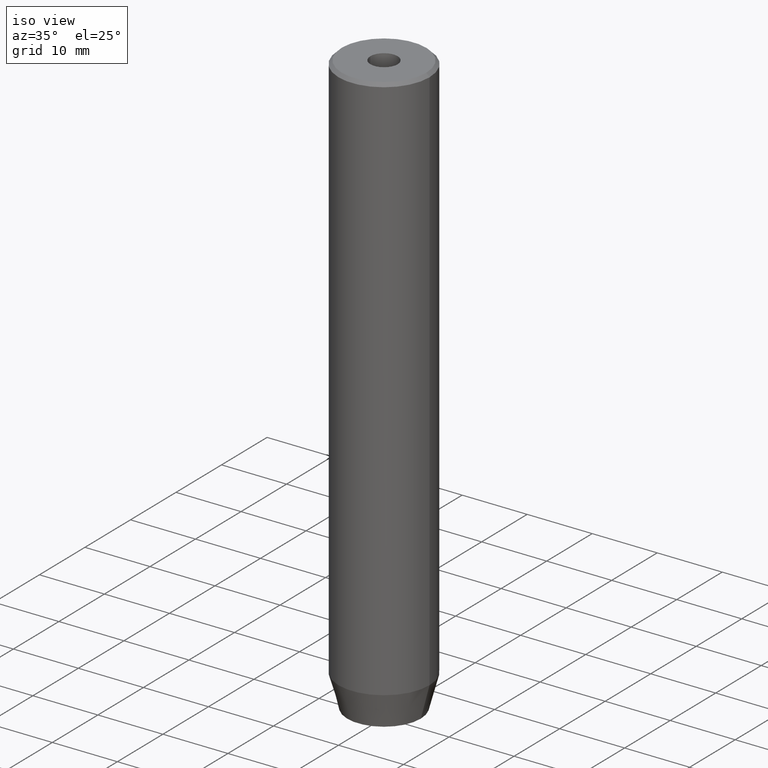
[diagram: clean part render]
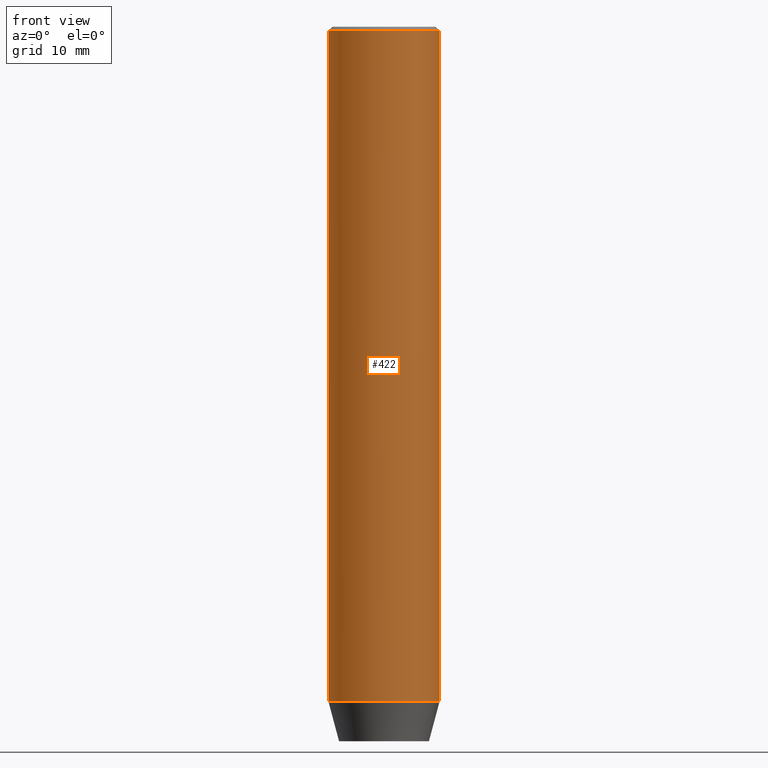
[diagram: tour spotlight — one face highlighted and labeled with its STEP entity id]
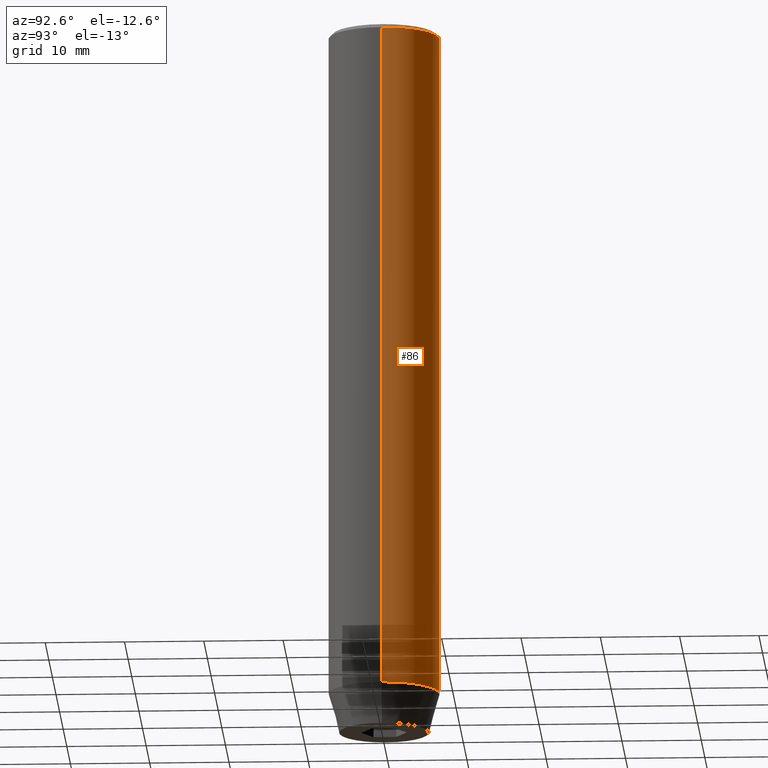
[diagram: tour spotlight — one face highlighted and labeled with its STEP entity id]
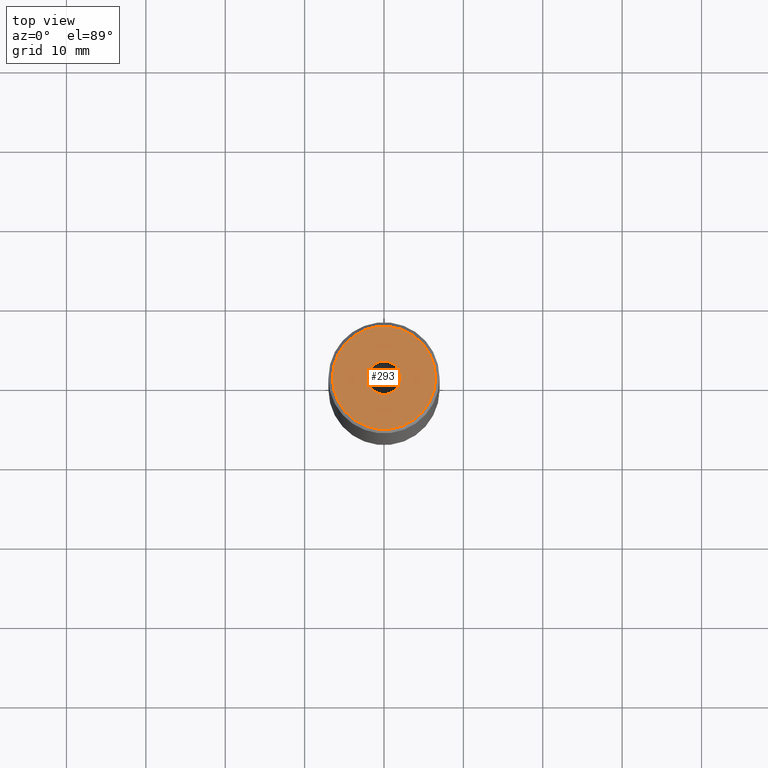
[diagram: tour spotlight — one face highlighted and labeled with its STEP entity id]
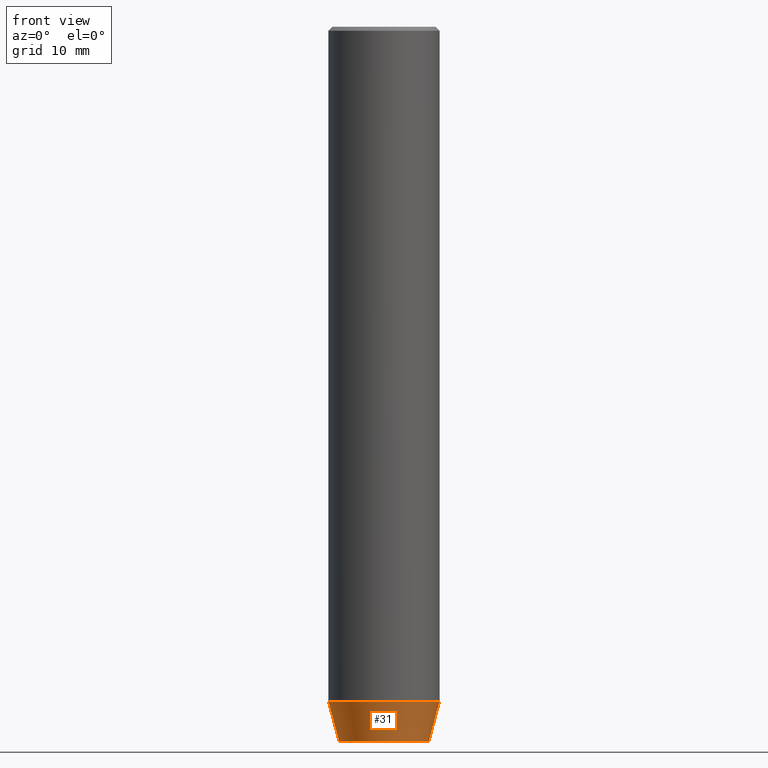
[diagram: tour spotlight — one face highlighted and labeled with its STEP entity id]
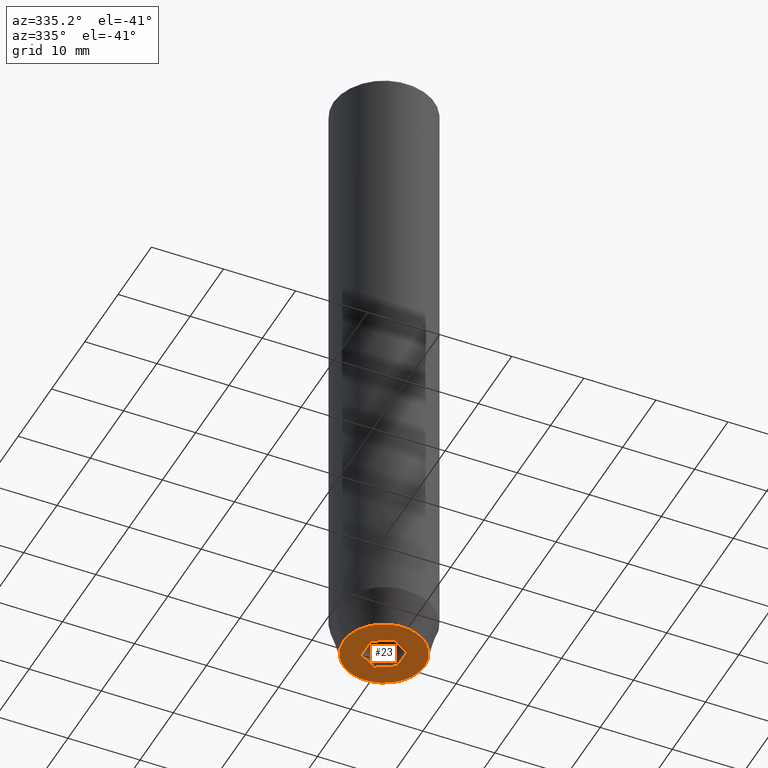
[diagram: tour spotlight — one face highlighted and labeled with its STEP entity id]
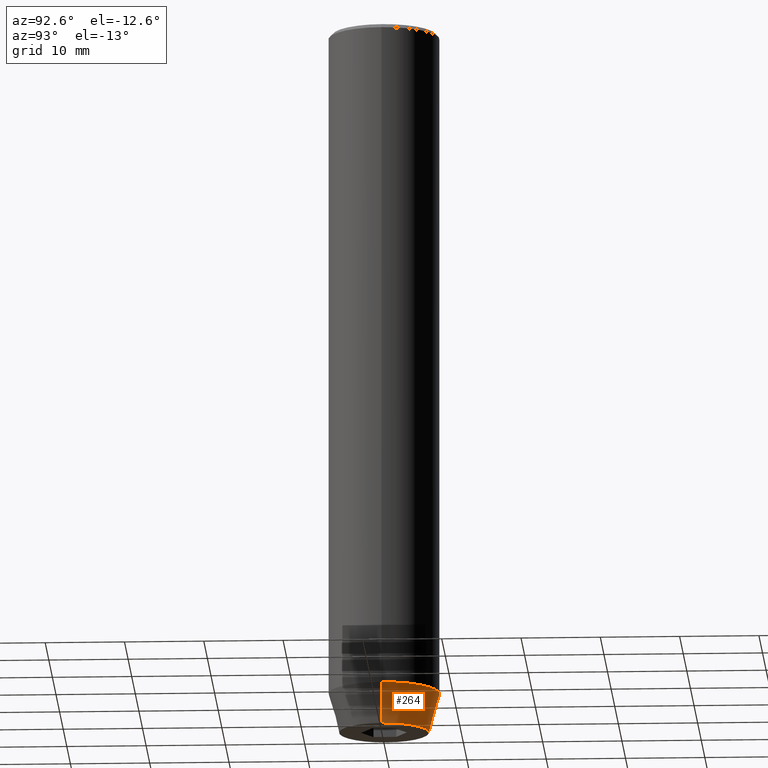
[diagram: tour spotlight — one face highlighted and labeled with its STEP entity id]
A machine part: a face-by-face anatomy tour. The part has 19 B-rep faces; the first image is the clean iso view, then the 6 largest visible faces are spotlighted one at a time (largest first), each with its STEP entity span.

Face 1 — front view, entity #422. In plain terms, the highlighted cylindrical surface (partial cylindrical patch) has radius 7 mm, axis along (-0, -0, 1).
Definition (entity closure, byte-faithful):
#4 = LINE ( 'NONE', #284, #435 ) ;
#8 = DIRECTION ( 'NONE',  ( -0.000000000000000000, -0.000000000000000000, 1.000000000000000000 ) ) ;
#40 = EDGE_CURVE ( 'NONE', #448, #223, #80, .T. ) ;
#58 = DIRECTION ( 'NONE',  ( -0.000000000000000000, -0.000000000000000000, 1.000000000000000000 ) ) ;
#62 = EDGE_CURVE ( 'NONE', #262, #153, #401, .T. ) ;
#80 = CIRCLE ( 'NONE', #251, 7.000000000000000000 ) ;
#97 = CARTESIAN_POINT ( 'NONE',  ( 0.000000000000000000, 0.000000000000000000, -84.99999999999998579 ) ) ;
#101 = CARTESIAN_POINT ( 'NONE',  ( 0.000000000000000000, 0.000000000000000000, -0.5000000000000186517 ) ) ;
#108 = ORIENTED_EDGE ( 'NONE', *, *, #337, .F. ) ;
#116 = CARTESIAN_POINT ( 'NONE',  ( 7.000000000000000000, 0.000000000000000000, -84.99999999999998579 ) ) ;
#145 = ORIENTED_EDGE ( 'NONE', *, *, #62, .T. ) ;
#147 = DIRECTION ( 'NONE',  ( -0.000000000000000000, -0.000000000000000000, 1.000000000000000000 ) ) ;
#153 = VERTEX_POINT ( 'NONE', #116 ) ;
#171 = CYLINDRICAL_SURFACE ( 'NONE', #463, 7.000000000000000000 ) ;
#189 = CARTESIAN_POINT ( 'NONE',  ( 0.000000000000000000, 0.000000000000000000, 0.000000000000000000 ) ) ;
#212 = AXIS2_PLACEMENT_3D ( 'NONE', #97, #8, #414 ) ;
#216 = ORIENTED_EDGE ( 'NONE', *, *, #246, .T. ) ;
#223 = VERTEX_POINT ( 'NONE', #240 ) ;
#239 = LINE ( 'NONE', #550, #271 ) ;
#240 = CARTESIAN_POINT ( 'NONE',  ( -7.000000000000000000, 8.572527594031473190E-16, -0.5000000000000186517 ) ) ;
#246 = EDGE_CURVE ( 'NONE', #153, #448, #4, .T. ) ;
#251 = AXIS2_PLACEMENT_3D ( 'NONE', #101, #286, #425 ) ;
#262 = VERTEX_POINT ( 'NONE', #503 ) ;
#271 = VECTOR ( 'NONE', #58, 1000.000000000000000 ) ;
#284 = CARTESIAN_POINT ( 'NONE',  ( 7.000000000000000000, 0.000000000000000000, 0.000000000000000000 ) ) ;
#286 = DIRECTION ( 'NONE',  ( 0.000000000000000000, 0.000000000000000000, -1.000000000000000000 ) ) ;
#321 = ORIENTED_EDGE ( 'NONE', *, *, #40, .T. ) ;
#337 = EDGE_CURVE ( 'NONE', #262, #223, #239, .T. ) ;
#401 = CIRCLE ( 'NONE', #212, 7.000000000000000000 ) ;
#414 = DIRECTION ( 'NONE',  ( 1.000000000000000000, 0.000000000000000000, 0.000000000000000000 ) ) ;
#422 = ADVANCED_FACE ( 'NONE', ( #457 ), #171, .T. ) ;
#425 = DIRECTION ( 'NONE',  ( 1.000000000000000000, 0.000000000000000000, 0.000000000000000000 ) ) ;
#426 = DIRECTION ( 'NONE',  ( 1.000000000000000000, 0.000000000000000000, 0.000000000000000000 ) ) ;
#435 = VECTOR ( 'NONE', #147, 1000.000000000000000 ) ;
#448 = VERTEX_POINT ( 'NONE', #567 ) ;
#457 = FACE_OUTER_BOUND ( 'NONE', #563, .T. ) ;
#463 = AXIS2_PLACEMENT_3D ( 'NONE', #189, #497, #426 ) ;
#497 = DIRECTION ( 'NONE',  ( -0.000000000000000000, -0.000000000000000000, 1.000000000000000000 ) ) ;
#503 = CARTESIAN_POINT ( 'NONE',  ( -7.000000000000000000, 8.572527594031473190E-16, -84.99999999999998579 ) ) ;
#550 = CARTESIAN_POINT ( 'NONE',  ( -7.000000000000000000, 8.572527594031473190E-16, 0.000000000000000000 ) ) ;
#563 = EDGE_LOOP ( 'NONE', ( #108, #145, #216, #321 ) ) ;
#567 = CARTESIAN_POINT ( 'NONE',  ( 7.000000000000000000, 0.000000000000000000, -0.5000000000000186517 ) ) ;

Face 2 — auxiliary view, entity #86. In plain terms, the highlighted cylindrical surface (partial cylindrical patch) has radius 7 mm, axis along (-0, -0, 1).
Definition (entity closure, byte-faithful):
#4 = LINE ( 'NONE', #284, #435 ) ;
#5 = ORIENTED_EDGE ( 'NONE', *, *, #337, .T. ) ;
#22 = DIRECTION ( 'NONE',  ( 1.000000000000000000, 0.000000000000000000, 0.000000000000000000 ) ) ;
#48 = DIRECTION ( 'NONE',  ( 0.000000000000000000, 0.000000000000000000, -1.000000000000000000 ) ) ;
#58 = DIRECTION ( 'NONE',  ( -0.000000000000000000, -0.000000000000000000, 1.000000000000000000 ) ) ;
#74 = CYLINDRICAL_SURFACE ( 'NONE', #508, 7.000000000000000000 ) ;
#86 = ADVANCED_FACE ( 'NONE', ( #560 ), #74, .T. ) ;
#116 = CARTESIAN_POINT ( 'NONE',  ( 7.000000000000000000, 0.000000000000000000, -84.99999999999998579 ) ) ;
#117 = EDGE_CURVE ( 'NONE', #153, #262, #420, .T. ) ;
#147 = DIRECTION ( 'NONE',  ( -0.000000000000000000, -0.000000000000000000, 1.000000000000000000 ) ) ;
#153 = VERTEX_POINT ( 'NONE', #116 ) ;
#223 = VERTEX_POINT ( 'NONE', #240 ) ;
#232 = DIRECTION ( 'NONE',  ( 1.000000000000000000, 0.000000000000000000, 0.000000000000000000 ) ) ;
#236 = AXIS2_PLACEMENT_3D ( 'NONE', #303, #480, #256 ) ;
#239 = LINE ( 'NONE', #550, #271 ) ;
#240 = CARTESIAN_POINT ( 'NONE',  ( -7.000000000000000000, 8.572527594031473190E-16, -0.5000000000000186517 ) ) ;
#246 = EDGE_CURVE ( 'NONE', #153, #448, #4, .T. ) ;
#256 = DIRECTION ( 'NONE',  ( 1.000000000000000000, 0.000000000000000000, 0.000000000000000000 ) ) ;
#262 = VERTEX_POINT ( 'NONE', #503 ) ;
#271 = VECTOR ( 'NONE', #58, 1000.000000000000000 ) ;
#284 = CARTESIAN_POINT ( 'NONE',  ( 7.000000000000000000, 0.000000000000000000, 0.000000000000000000 ) ) ;
#303 = CARTESIAN_POINT ( 'NONE',  ( 0.000000000000000000, 0.000000000000000000, -84.99999999999998579 ) ) ;
#314 = ORIENTED_EDGE ( 'NONE', *, *, #117, .T. ) ;
#337 = EDGE_CURVE ( 'NONE', #262, #223, #239, .T. ) ;
#357 = CIRCLE ( 'NONE', #479, 7.000000000000000000 ) ;
#415 = CARTESIAN_POINT ( 'NONE',  ( 0.000000000000000000, 0.000000000000000000, -0.5000000000000186517 ) ) ;
#420 = CIRCLE ( 'NONE', #236, 7.000000000000000000 ) ;
#429 = EDGE_CURVE ( 'NONE', #223, #448, #357, .T. ) ;
#435 = VECTOR ( 'NONE', #147, 1000.000000000000000 ) ;
#448 = VERTEX_POINT ( 'NONE', #567 ) ;
#476 = CARTESIAN_POINT ( 'NONE',  ( 0.000000000000000000, 0.000000000000000000, 0.000000000000000000 ) ) ;
#478 = EDGE_LOOP ( 'NONE', ( #314, #5, #547, #496 ) ) ;
#479 = AXIS2_PLACEMENT_3D ( 'NONE', #415, #48, #232 ) ;
#480 = DIRECTION ( 'NONE',  ( -0.000000000000000000, -0.000000000000000000, 1.000000000000000000 ) ) ;
#496 = ORIENTED_EDGE ( 'NONE', *, *, #246, .F. ) ;
#503 = CARTESIAN_POINT ( 'NONE',  ( -7.000000000000000000, 8.572527594031473190E-16, -84.99999999999998579 ) ) ;
#508 = AXIS2_PLACEMENT_3D ( 'NONE', #476, #516, #22 ) ;
#516 = DIRECTION ( 'NONE',  ( -0.000000000000000000, -0.000000000000000000, 1.000000000000000000 ) ) ;
#547 = ORIENTED_EDGE ( 'NONE', *, *, #429, .T. ) ;
#550 = CARTESIAN_POINT ( 'NONE',  ( -7.000000000000000000, 8.572527594031473190E-16, 0.000000000000000000 ) ) ;
#560 = FACE_OUTER_BOUND ( 'NONE', #478, .T. ) ;
#567 = CARTESIAN_POINT ( 'NONE',  ( 7.000000000000000000, 0.000000000000000000, -0.5000000000000186517 ) ) ;

Face 3 — top view, entity #293. In plain terms, the highlighted planar face has unit normal (0, -0, 1).
Definition (entity closure, byte-faithful):
#28 = VERTEX_POINT ( 'NONE', #460 ) ;
#34 = ORIENTED_EDGE ( 'NONE', *, *, #493, .F. ) ;
#47 = DIRECTION ( 'NONE',  ( 1.000000000000000000, 0.000000000000000000, 0.000000000000000000 ) ) ;
#66 = EDGE_LOOP ( 'NONE', ( #34, #285 ) ) ;
#79 = CARTESIAN_POINT ( 'NONE',  ( 0.000000000000000000, 0.000000000000000000, -1.990051048614449116E-16 ) ) ;
#112 = CIRCLE ( 'NONE', #365, 2.099999999999998757 ) ;
#130 = CIRCLE ( 'NONE', #561, 6.499999999999992006 ) ;
#135 = EDGE_CURVE ( 'NONE', #310, #433, #568, .T. ) ;
#144 = DIRECTION ( 'NONE',  ( 1.000000000000000000, 0.000000000000000000, 0.000000000000000000 ) ) ;
#157 = CARTESIAN_POINT ( 'NONE',  ( 0.000000000000000000, 0.000000000000000000, 0.000000000000000000 ) ) ;
#190 = CARTESIAN_POINT ( 'NONE',  ( 0.000000000000000000, 0.000000000000000000, 0.000000000000000000 ) ) ;
#200 = EDGE_CURVE ( 'NONE', #433, #310, #130, .T. ) ;
#202 = DIRECTION ( 'NONE',  ( -0.000000000000000000, -0.000000000000000000, 1.000000000000000000 ) ) ;
#205 = ORIENTED_EDGE ( 'NONE', *, *, #135, .T. ) ;
#213 = CIRCLE ( 'NONE', #237, 2.099999999999998757 ) ;
#237 = AXIS2_PLACEMENT_3D ( 'NONE', #79, #578, #47 ) ;
#254 = EDGE_CURVE ( 'NONE', #399, #28, #112, .T. ) ;
#281 = PLANE ( 'NONE',  #327 ) ;
#285 = ORIENTED_EDGE ( 'NONE', *, *, #254, .F. ) ;
#288 = DIRECTION ( 'NONE',  ( -0.000000000000000000, -0.000000000000000000, 1.000000000000000000 ) ) ;
#293 = ADVANCED_FACE ( 'NONE', ( #551, #384 ), #281, .T. ) ;
#310 = VERTEX_POINT ( 'NONE', #587 ) ;
#327 = AXIS2_PLACEMENT_3D ( 'NONE', #190, #344, #340 ) ;
#331 = DIRECTION ( 'NONE',  ( -0.000000000000000000, -0.000000000000000000, 1.000000000000000000 ) ) ;
#333 = DIRECTION ( 'NONE',  ( 1.000000000000000000, 0.000000000000000000, 0.000000000000000000 ) ) ;
#334 = EDGE_LOOP ( 'NONE', ( #347, #205 ) ) ;
#340 = DIRECTION ( 'NONE',  ( 1.000000000000000000, 0.000000000000000000, 0.000000000000000000 ) ) ;
#344 = DIRECTION ( 'NONE',  ( 0.000000000000000000, -0.000000000000000000, 1.000000000000000000 ) ) ;
#345 = DIRECTION ( 'NONE',  ( 1.000000000000000000, 0.000000000000000000, 0.000000000000000000 ) ) ;
#347 = ORIENTED_EDGE ( 'NONE', *, *, #200, .T. ) ;
#365 = AXIS2_PLACEMENT_3D ( 'NONE', #555, #331, #333 ) ;
#384 = FACE_OUTER_BOUND ( 'NONE', #334, .T. ) ;
#395 = CARTESIAN_POINT ( 'NONE',  ( -6.499999999999992006, 0.000000000000000000, 0.000000000000000000 ) ) ;
#399 = VERTEX_POINT ( 'NONE', #513 ) ;
#433 = VERTEX_POINT ( 'NONE', #395 ) ;
#460 = CARTESIAN_POINT ( 'NONE',  ( 2.099999999999998757, 0.000000000000000000, -1.990051048614449116E-16 ) ) ;
#470 = CARTESIAN_POINT ( 'NONE',  ( 0.000000000000000000, 0.000000000000000000, 0.000000000000000000 ) ) ;
#487 = AXIS2_PLACEMENT_3D ( 'NONE', #157, #202, #345 ) ;
#493 = EDGE_CURVE ( 'NONE', #28, #399, #213, .T. ) ;
#513 = CARTESIAN_POINT ( 'NONE',  ( -2.099999999999998757, 2.571758278209439985E-16, -1.990051048614449116E-16 ) ) ;
#551 = FACE_BOUND ( 'NONE', #66, .T. ) ;
#555 = CARTESIAN_POINT ( 'NONE',  ( 0.000000000000000000, 0.000000000000000000, -1.990051048614449116E-16 ) ) ;
#561 = AXIS2_PLACEMENT_3D ( 'NONE', #470, #288, #144 ) ;
#568 = CIRCLE ( 'NONE', #487, 6.499999999999992006 ) ;
#578 = DIRECTION ( 'NONE',  ( -0.000000000000000000, -0.000000000000000000, 1.000000000000000000 ) ) ;
#587 = CARTESIAN_POINT ( 'NONE',  ( 6.499999999999992006, 8.266365894244629403E-16, 0.000000000000000000 ) ) ;

Face 4 — front view, entity #31. In plain terms, the highlighted conical surface has half-angle 15 deg.
Definition (entity closure, byte-faithful):
#3 = CONICAL_SURFACE ( 'NONE', #431, 7.000000000000000000, 0.2617993877991499074 ) ;
#8 = DIRECTION ( 'NONE',  ( -0.000000000000000000, -0.000000000000000000, 1.000000000000000000 ) ) ;
#15 = EDGE_CURVE ( 'NONE', #526, #311, #515, .T. ) ;
#30 = CARTESIAN_POINT ( 'NONE',  ( 7.000000000000000000, 0.000000000000000000, -84.99999999999998579 ) ) ;
#31 = ADVANCED_FACE ( 'NONE', ( #146 ), #3, .T. ) ;
#42 = CARTESIAN_POINT ( 'NONE',  ( -7.000000000000000000, 8.572527594031473190E-16, -84.99999999999998579 ) ) ;
#62 = EDGE_CURVE ( 'NONE', #262, #153, #401, .T. ) ;
#69 = ORIENTED_EDGE ( 'NONE', *, *, #499, .F. ) ;
#97 = CARTESIAN_POINT ( 'NONE',  ( 0.000000000000000000, 0.000000000000000000, -84.99999999999998579 ) ) ;
#100 = CARTESIAN_POINT ( 'NONE',  ( 5.660254037844382857, 0.000000000000000000, -90.00000000000000000 ) ) ;
#104 = CARTESIAN_POINT ( 'NONE',  ( 0.000000000000000000, 0.000000000000000000, -84.99999999999998579 ) ) ;
#115 = ORIENTED_EDGE ( 'NONE', *, *, #354, .T. ) ;
#116 = CARTESIAN_POINT ( 'NONE',  ( 7.000000000000000000, 0.000000000000000000, -84.99999999999998579 ) ) ;
#123 = VECTOR ( 'NONE', #574, 1000.000000000000114 ) ;
#146 = FACE_OUTER_BOUND ( 'NONE', #396, .T. ) ;
#153 = VERTEX_POINT ( 'NONE', #116 ) ;
#185 = AXIS2_PLACEMENT_3D ( 'NONE', #300, #477, #355 ) ;
#212 = AXIS2_PLACEMENT_3D ( 'NONE', #97, #8, #414 ) ;
#219 = DIRECTION ( 'NONE',  ( 0.2588190451025211836, 0.000000000000000000, 0.9659258262890680902 ) ) ;
#262 = VERTEX_POINT ( 'NONE', #503 ) ;
#300 = CARTESIAN_POINT ( 'NONE',  ( 0.000000000000000000, 0.000000000000000000, -90.00000000000000000 ) ) ;
#311 = VERTEX_POINT ( 'NONE', #100 ) ;
#335 = DIRECTION ( 'NONE',  ( -0.000000000000000000, -0.000000000000000000, 1.000000000000000000 ) ) ;
#343 = ORIENTED_EDGE ( 'NONE', *, *, #62, .F. ) ;
#354 = EDGE_CURVE ( 'NONE', #311, #153, #489, .T. ) ;
#355 = DIRECTION ( 'NONE',  ( 1.000000000000000000, 0.000000000000000000, 0.000000000000000000 ) ) ;
#367 = CARTESIAN_POINT ( 'NONE',  ( -5.660254037844382857, 7.752169791919238770E-16, -90.00000000000000000 ) ) ;
#396 = EDGE_LOOP ( 'NONE', ( #69, #440, #115, #343 ) ) ;
#401 = CIRCLE ( 'NONE', #212, 7.000000000000000000 ) ;
#414 = DIRECTION ( 'NONE',  ( 1.000000000000000000, 0.000000000000000000, 0.000000000000000000 ) ) ;
#431 = AXIS2_PLACEMENT_3D ( 'NONE', #104, #335, #505 ) ;
#440 = ORIENTED_EDGE ( 'NONE', *, *, #15, .T. ) ;
#447 = LINE ( 'NONE', #42, #123 ) ;
#472 = VECTOR ( 'NONE', #219, 1000.000000000000114 ) ;
#477 = DIRECTION ( 'NONE',  ( -0.000000000000000000, -0.000000000000000000, 1.000000000000000000 ) ) ;
#489 = LINE ( 'NONE', #30, #472 ) ;
#499 = EDGE_CURVE ( 'NONE', #526, #262, #447, .T. ) ;
#503 = CARTESIAN_POINT ( 'NONE',  ( -7.000000000000000000, 8.572527594031473190E-16, -84.99999999999998579 ) ) ;
#505 = DIRECTION ( 'NONE',  ( 1.000000000000000000, 0.000000000000000000, 0.000000000000000000 ) ) ;
#515 = CIRCLE ( 'NONE', #185, 5.660254037844382857 ) ;
#526 = VERTEX_POINT ( 'NONE', #367 ) ;
#574 = DIRECTION ( 'NONE',  ( -0.2588190451025211836, 3.169619151431770488E-17, 0.9659258262890680902 ) ) ;

Face 5 — auxiliary view, entity #23. In plain terms, the highlighted planar face has unit normal (0, 0, -1).
Definition (entity closure, byte-faithful):
#15 = EDGE_CURVE ( 'NONE', #526, #311, #515, .T. ) ;
#20 = LINE ( 'NONE', #391, #148 ) ;
#23 = ADVANCED_FACE ( 'NONE', ( #439, #71 ), #253, .T. ) ;
#29 = VECTOR ( 'NONE', #109, 1000.000000000000114 ) ;
#53 = CARTESIAN_POINT ( 'NONE',  ( -2.500000000000000444, 0.000000000000000000, -90.00000000000000000 ) ) ;
#59 = LINE ( 'NONE', #556, #29 ) ;
#60 = ORIENTED_EDGE ( 'NONE', *, *, #539, .F. ) ;
#61 = CARTESIAN_POINT ( 'NONE',  ( 0.000000000000000000, -2.886751345948128211, -90.00000000000000000 ) ) ;
#65 = LINE ( 'NONE', #53, #294 ) ;
#71 = FACE_OUTER_BOUND ( 'NONE', #585, .T. ) ;
#72 = EDGE_CURVE ( 'NONE', #411, #209, #231, .T. ) ;
#76 = ORIENTED_EDGE ( 'NONE', *, *, #403, .F. ) ;
#84 = CARTESIAN_POINT ( 'NONE',  ( 2.500000000000000000, -1.443375672974064106, -90.00000000000000000 ) ) ;
#90 = LINE ( 'NONE', #538, #102 ) ;
#96 = VERTEX_POINT ( 'NONE', #61 ) ;
#100 = CARTESIAN_POINT ( 'NONE',  ( 5.660254037844382857, 0.000000000000000000, -90.00000000000000000 ) ) ;
#102 = VECTOR ( 'NONE', #272, 1000.000000000000000 ) ;
#109 = DIRECTION ( 'NONE',  ( -0.8660254037844387076, 0.4999999999999998890, 0.000000000000000000 ) ) ;
#124 = DIRECTION ( 'NONE',  ( 0.000000000000000000, 0.000000000000000000, -1.000000000000000000 ) ) ;
#128 = ORIENTED_EDGE ( 'NONE', *, *, #15, .F. ) ;
#143 = EDGE_CURVE ( 'NONE', #368, #96, #20, .T. ) ;
#148 = VECTOR ( 'NONE', #564, 999.9999999999998863 ) ;
#152 = EDGE_CURVE ( 'NONE', #209, #302, #161, .T. ) ;
#154 = CARTESIAN_POINT ( 'NONE',  ( 2.500000000000000000, 1.443375672974064328, -90.00000000000000000 ) ) ;
#158 = ORIENTED_EDGE ( 'NONE', *, *, #552, .F. ) ;
#161 = LINE ( 'NONE', #351, #486 ) ;
#184 = CARTESIAN_POINT ( 'NONE',  ( -2.500000000000000444, 1.443375672974064772, -90.00000000000000000 ) ) ;
#185 = AXIS2_PLACEMENT_3D ( 'NONE', #300, #477, #355 ) ;
#187 = CARTESIAN_POINT ( 'NONE',  ( -2.500000000000000444, -1.443375672974064328, -90.00000000000000000 ) ) ;
#197 = CARTESIAN_POINT ( 'NONE',  ( 0.000000000000000000, 2.886751345948129099, -90.00000000000000000 ) ) ;
#206 = DIRECTION ( 'NONE',  ( 0.8660254037844385966, 0.5000000000000001110, 0.000000000000000000 ) ) ;
#209 = VERTEX_POINT ( 'NONE', #197 ) ;
#221 = DIRECTION ( 'NONE',  ( -0.000000000000000000, -0.000000000000000000, 1.000000000000000000 ) ) ;
#226 = EDGE_LOOP ( 'NONE', ( #572, #459, #76, #330, #158, #471 ) ) ;
#231 = LINE ( 'NONE', #523, #445 ) ;
#247 = VERTEX_POINT ( 'NONE', #187 ) ;
#253 = PLANE ( 'NONE',  #338 ) ;
#272 = DIRECTION ( 'NONE',  ( 0.000000000000000000, -1.000000000000000000, 0.000000000000000000 ) ) ;
#294 = VECTOR ( 'NONE', #421, 1000.000000000000000 ) ;
#300 = CARTESIAN_POINT ( 'NONE',  ( 0.000000000000000000, 0.000000000000000000, -90.00000000000000000 ) ) ;
#302 = VERTEX_POINT ( 'NONE', #154 ) ;
#306 = DIRECTION ( 'NONE',  ( -1.000000000000000000, 0.000000000000000000, -0.000000000000000000 ) ) ;
#311 = VERTEX_POINT ( 'NONE', #100 ) ;
#320 = CARTESIAN_POINT ( 'NONE',  ( 0.000000000000000000, 0.000000000000000000, -90.00000000000000000 ) ) ;
#324 = DIRECTION ( 'NONE',  ( 1.000000000000000000, 0.000000000000000000, 0.000000000000000000 ) ) ;
#330 = ORIENTED_EDGE ( 'NONE', *, *, #143, .F. ) ;
#338 = AXIS2_PLACEMENT_3D ( 'NONE', #524, #124, #306 ) ;
#339 = CIRCLE ( 'NONE', #390, 5.660254037844382857 ) ;
#351 = CARTESIAN_POINT ( 'NONE',  ( 1.250000000000000222, 2.165063509461096825, -90.00000000000000000 ) ) ;
#355 = DIRECTION ( 'NONE',  ( 1.000000000000000000, 0.000000000000000000, 0.000000000000000000 ) ) ;
#367 = CARTESIAN_POINT ( 'NONE',  ( -5.660254037844382857, 7.752169791919238770E-16, -90.00000000000000000 ) ) ;
#368 = VERTEX_POINT ( 'NONE', #84 ) ;
#390 = AXIS2_PLACEMENT_3D ( 'NONE', #320, #221, #324 ) ;
#391 = CARTESIAN_POINT ( 'NONE',  ( 1.249999999999999778, -2.165063509461096380, -90.00000000000000000 ) ) ;
#403 = EDGE_CURVE ( 'NONE', #96, #247, #59, .T. ) ;
#411 = VERTEX_POINT ( 'NONE', #184 ) ;
#421 = DIRECTION ( 'NONE',  ( 0.000000000000000000, 1.000000000000000000, 0.000000000000000000 ) ) ;
#439 = FACE_BOUND ( 'NONE', #226, .T. ) ;
#445 = VECTOR ( 'NONE', #206, 1000.000000000000000 ) ;
#459 = ORIENTED_EDGE ( 'NONE', *, *, #583, .F. ) ;
#471 = ORIENTED_EDGE ( 'NONE', *, *, #152, .F. ) ;
#477 = DIRECTION ( 'NONE',  ( -0.000000000000000000, -0.000000000000000000, 1.000000000000000000 ) ) ;
#486 = VECTOR ( 'NONE', #521, 1000.000000000000000 ) ;
#515 = CIRCLE ( 'NONE', #185, 5.660254037844382857 ) ;
#521 = DIRECTION ( 'NONE',  ( 0.8660254037844385966, -0.5000000000000001110, 0.000000000000000000 ) ) ;
#523 = CARTESIAN_POINT ( 'NONE',  ( -1.250000000000000444, 2.165063509461097269, -90.00000000000000000 ) ) ;
#524 = CARTESIAN_POINT ( 'NONE',  ( 0.000000000000000000, 5.660254037844382857, -90.00000000000000000 ) ) ;
#526 = VERTEX_POINT ( 'NONE', #367 ) ;
#538 = CARTESIAN_POINT ( 'NONE',  ( 2.500000000000000000, 0.000000000000000000, -90.00000000000000000 ) ) ;
#539 = EDGE_CURVE ( 'NONE', #311, #526, #339, .T. ) ;
#552 = EDGE_CURVE ( 'NONE', #302, #368, #90, .T. ) ;
#556 = CARTESIAN_POINT ( 'NONE',  ( -1.249999999999999556, -2.165063509461096825, -90.00000000000000000 ) ) ;
#564 = DIRECTION ( 'NONE',  ( -0.8660254037844387076, -0.5000000000000001110, 0.000000000000000000 ) ) ;
#572 = ORIENTED_EDGE ( 'NONE', *, *, #72, .F. ) ;
#583 = EDGE_CURVE ( 'NONE', #247, #411, #65, .T. ) ;
#585 = EDGE_LOOP ( 'NONE', ( #60, #128 ) ) ;

Face 6 — auxiliary view, entity #264. In plain terms, the highlighted conical surface has half-angle 15 deg.
Definition (entity closure, byte-faithful):
#10 = CARTESIAN_POINT ( 'NONE',  ( 0.000000000000000000, 0.000000000000000000, -84.99999999999998579 ) ) ;
#30 = CARTESIAN_POINT ( 'NONE',  ( 7.000000000000000000, 0.000000000000000000, -84.99999999999998579 ) ) ;
#42 = CARTESIAN_POINT ( 'NONE',  ( -7.000000000000000000, 8.572527594031473190E-16, -84.99999999999998579 ) ) ;
#100 = CARTESIAN_POINT ( 'NONE',  ( 5.660254037844382857, 0.000000000000000000, -90.00000000000000000 ) ) ;
#116 = CARTESIAN_POINT ( 'NONE',  ( 7.000000000000000000, 0.000000000000000000, -84.99999999999998579 ) ) ;
#117 = EDGE_CURVE ( 'NONE', #153, #262, #420, .T. ) ;
#123 = VECTOR ( 'NONE', #574, 1000.000000000000114 ) ;
#153 = VERTEX_POINT ( 'NONE', #116 ) ;
#195 = ORIENTED_EDGE ( 'NONE', *, *, #117, .F. ) ;
#203 = AXIS2_PLACEMENT_3D ( 'NONE', #10, #379, #501 ) ;
#219 = DIRECTION ( 'NONE',  ( 0.2588190451025211836, 0.000000000000000000, 0.9659258262890680902 ) ) ;
#221 = DIRECTION ( 'NONE',  ( -0.000000000000000000, -0.000000000000000000, 1.000000000000000000 ) ) ;
#236 = AXIS2_PLACEMENT_3D ( 'NONE', #303, #480, #256 ) ;
#256 = DIRECTION ( 'NONE',  ( 1.000000000000000000, 0.000000000000000000, 0.000000000000000000 ) ) ;
#261 = ORIENTED_EDGE ( 'NONE', *, *, #499, .T. ) ;
#262 = VERTEX_POINT ( 'NONE', #503 ) ;
#264 = ADVANCED_FACE ( 'NONE', ( #417 ), #453, .T. ) ;
#303 = CARTESIAN_POINT ( 'NONE',  ( 0.000000000000000000, 0.000000000000000000, -84.99999999999998579 ) ) ;
#311 = VERTEX_POINT ( 'NONE', #100 ) ;
#320 = CARTESIAN_POINT ( 'NONE',  ( 0.000000000000000000, 0.000000000000000000, -90.00000000000000000 ) ) ;
#324 = DIRECTION ( 'NONE',  ( 1.000000000000000000, 0.000000000000000000, 0.000000000000000000 ) ) ;
#339 = CIRCLE ( 'NONE', #390, 5.660254037844382857 ) ;
#354 = EDGE_CURVE ( 'NONE', #311, #153, #489, .T. ) ;
#359 = ORIENTED_EDGE ( 'NONE', *, *, #539, .T. ) ;
#367 = CARTESIAN_POINT ( 'NONE',  ( -5.660254037844382857, 7.752169791919238770E-16, -90.00000000000000000 ) ) ;
#379 = DIRECTION ( 'NONE',  ( -0.000000000000000000, -0.000000000000000000, 1.000000000000000000 ) ) ;
#390 = AXIS2_PLACEMENT_3D ( 'NONE', #320, #221, #324 ) ;
#417 = FACE_OUTER_BOUND ( 'NONE', #540, .T. ) ;
#420 = CIRCLE ( 'NONE', #236, 7.000000000000000000 ) ;
#447 = LINE ( 'NONE', #42, #123 ) ;
#453 = CONICAL_SURFACE ( 'NONE', #203, 7.000000000000000000, 0.2617993877991499074 ) ;
#472 = VECTOR ( 'NONE', #219, 1000.000000000000114 ) ;
#480 = DIRECTION ( 'NONE',  ( -0.000000000000000000, -0.000000000000000000, 1.000000000000000000 ) ) ;
#489 = LINE ( 'NONE', #30, #472 ) ;
#499 = EDGE_CURVE ( 'NONE', #526, #262, #447, .T. ) ;
#501 = DIRECTION ( 'NONE',  ( 1.000000000000000000, 0.000000000000000000, 0.000000000000000000 ) ) ;
#503 = CARTESIAN_POINT ( 'NONE',  ( -7.000000000000000000, 8.572527594031473190E-16, -84.99999999999998579 ) ) ;
#522 = ORIENTED_EDGE ( 'NONE', *, *, #354, .F. ) ;
#526 = VERTEX_POINT ( 'NONE', #367 ) ;
#539 = EDGE_CURVE ( 'NONE', #311, #526, #339, .T. ) ;
#540 = EDGE_LOOP ( 'NONE', ( #359, #261, #195, #522 ) ) ;
#574 = DIRECTION ( 'NONE',  ( -0.2588190451025211836, 3.169619151431770488E-17, 0.9659258262890680902 ) ) ;